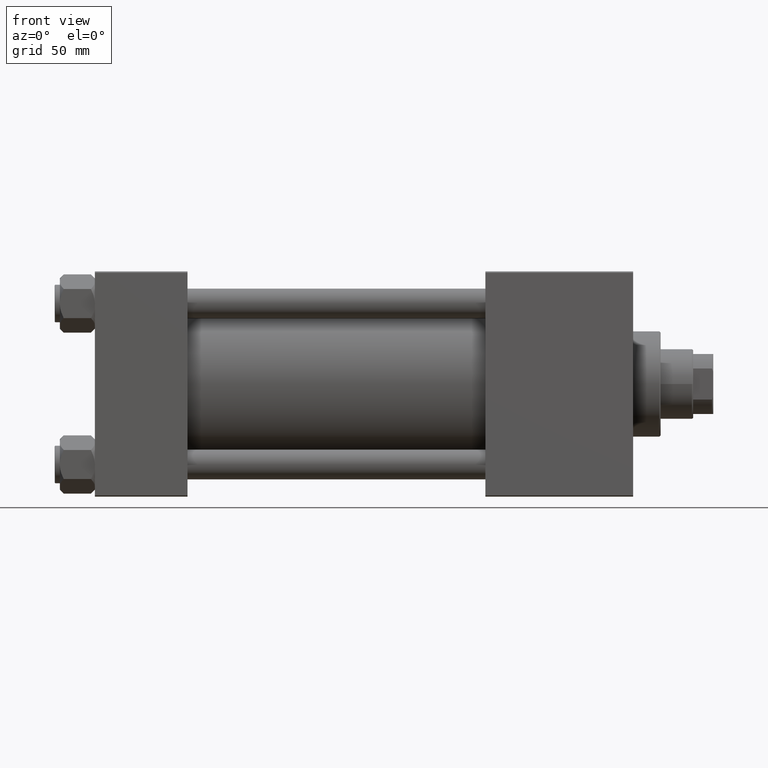
[diagram: clean part render]
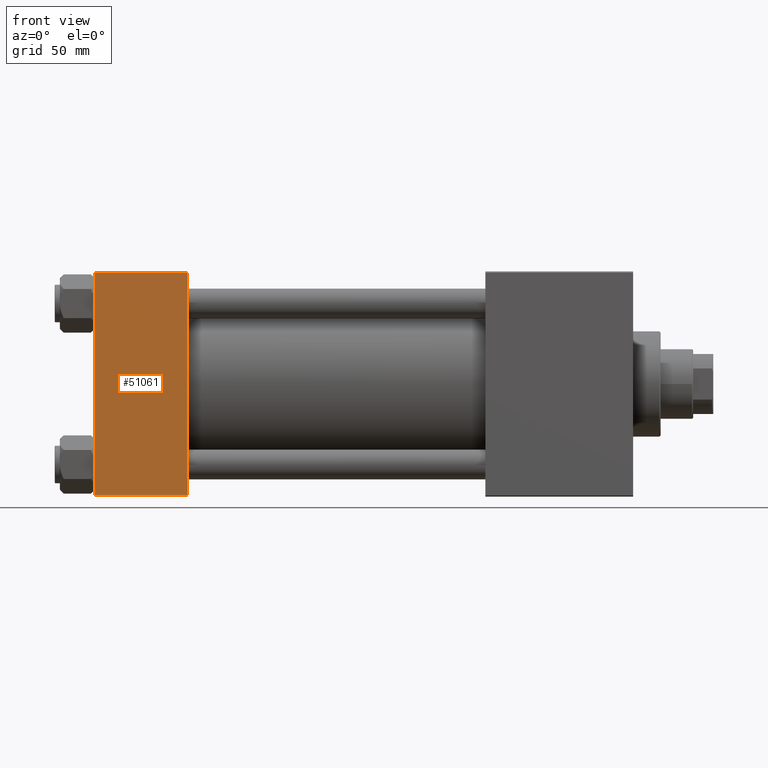
[diagram: same view with one face highlighted and labeled with its STEP entity id]
A machine part, front view. The second image highlights one B-rep face of the part: STEP entity #51061.
In plain terms, the highlighted planar face has unit normal (0, 1, 0).
Its self-contained STEP definition (entity closure, byte-faithful):
#134 = DIRECTION ( 'NONE',  ( -1.000000000000000000, 0.000000000000000000, 0.000000000000000000 ) ) ;
#4064 = LINE ( 'NONE', #24098, #23251 ) ;
#5855 = CARTESIAN_POINT ( 'NONE',  ( 37.00000000000000000, -45.00000000000000000, -44.49999999999995737 ) ) ;
#5873 = EDGE_CURVE ( 'NONE', #24212, #50545, #42497, .T. ) ;
#6222 = LINE ( 'NONE', #13531, #38678 ) ;
#6947 = EDGE_CURVE ( 'NONE', #24212, #41853, #12114, .T. ) ;
#7790 = PLANE ( 'NONE',  #31576 ) ;
#7915 = CARTESIAN_POINT ( 'NONE',  ( 37.00000000000000000, -45.00000000000000711, 45.00000000000000000 ) ) ;
#8971 = EDGE_LOOP ( 'NONE', ( #25627, #33085, #50945, #14054 ) ) ;
#12114 = LINE ( 'NONE', #43290, #20945 ) ;
#13531 = CARTESIAN_POINT ( 'NONE',  ( 0.000000000000000000, -45.00000000000000711, 45.00000000000000000 ) ) ;
#14054 = ORIENTED_EDGE ( 'NONE', *, *, #6947, .T. ) ;
#14540 = CARTESIAN_POINT ( 'NONE',  ( 37.00000000000000000, -45.00000000000000711, 44.49999999999997158 ) ) ;
#14950 = DIRECTION ( 'NONE',  ( 0.000000000000000000, 7.709882115452476934E-17, -1.000000000000000000 ) ) ;
#15318 = CARTESIAN_POINT ( 'NONE',  ( 0.000000000000000000, -45.00000000000000000, -44.49999999999995737 ) ) ;
#19293 = EDGE_CURVE ( 'NONE', #41853, #39691, #6222, .T. ) ;
#19493 = FACE_OUTER_BOUND ( 'NONE', #8971, .T. ) ;
#20081 = VECTOR ( 'NONE', #14950, 1000.000000000000000 ) ;
#20945 = VECTOR ( 'NONE', #134, 1000.000000000000000 ) ;
#23251 = VECTOR ( 'NONE', #46968, 1000.000000000000000 ) ;
#23647 = DIRECTION ( 'NONE',  ( -0.000000000000000000, 1.000000000000000000, 7.709882115452478166E-17 ) ) ;
#24098 = CARTESIAN_POINT ( 'NONE',  ( 37.00000000000000000, -45.00000000000000000, -44.49999999999998579 ) ) ;
#24212 = VERTEX_POINT ( 'NONE', #14540 ) ;
#25627 = ORIENTED_EDGE ( 'NONE', *, *, #19293, .T. ) ;
#31576 = AXIS2_PLACEMENT_3D ( 'NONE', #31688, #23647, #32729 ) ;
#31688 = CARTESIAN_POINT ( 'NONE',  ( 37.00000000000000000, -45.00000000000000711, 45.00000000000000000 ) ) ;
#32729 = DIRECTION ( 'NONE',  ( 0.000000000000000000, -7.709882115452478166E-17, 1.000000000000000000 ) ) ;
#33085 = ORIENTED_EDGE ( 'NONE', *, *, #50223, .T. ) ;
#37693 = DIRECTION ( 'NONE',  ( 0.000000000000000000, 7.709882115452476934E-17, -1.000000000000000000 ) ) ;
#38678 = VECTOR ( 'NONE', #37693, 1000.000000000000000 ) ;
#39691 = VERTEX_POINT ( 'NONE', #15318 ) ;
#41853 = VERTEX_POINT ( 'NONE', #44878 ) ;
#42497 = LINE ( 'NONE', #7915, #20081 ) ;
#43290 = CARTESIAN_POINT ( 'NONE',  ( 37.00000000000000000, -45.00000000000000711, 44.49999999999997158 ) ) ;
#44878 = CARTESIAN_POINT ( 'NONE',  ( 0.000000000000000000, -45.00000000000000711, 44.49999999999997158 ) ) ;
#46968 = DIRECTION ( 'NONE',  ( 1.000000000000000000, 0.000000000000000000, 0.000000000000000000 ) ) ;
#50223 = EDGE_CURVE ( 'NONE', #39691, #50545, #4064, .T. ) ;
#50545 = VERTEX_POINT ( 'NONE', #5855 ) ;
#50945 = ORIENTED_EDGE ( 'NONE', *, *, #5873, .F. ) ;
#51061 = ADVANCED_FACE ( 'NONE', ( #19493 ), #7790, .F. ) ;